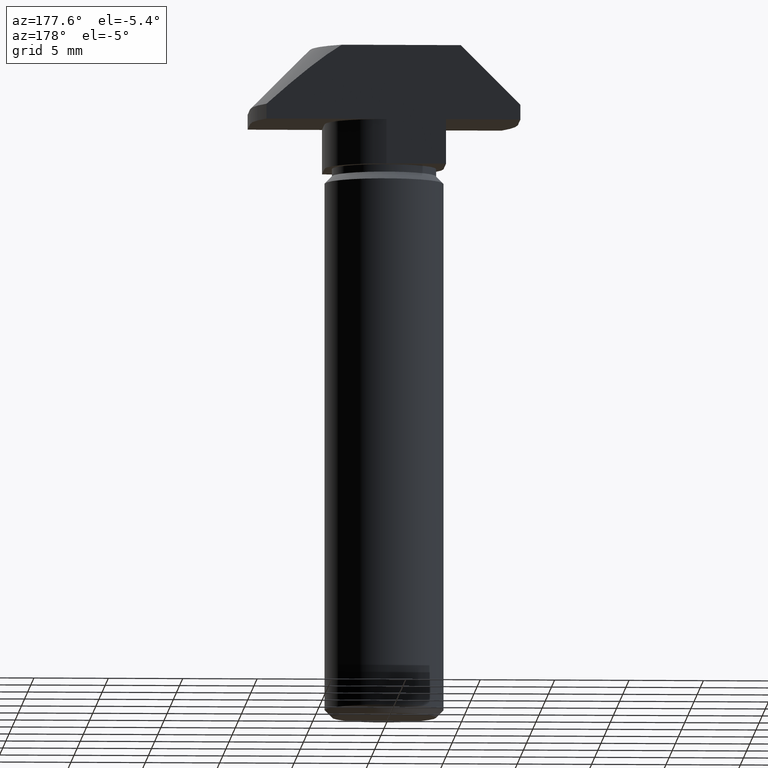
[diagram: clean part render]
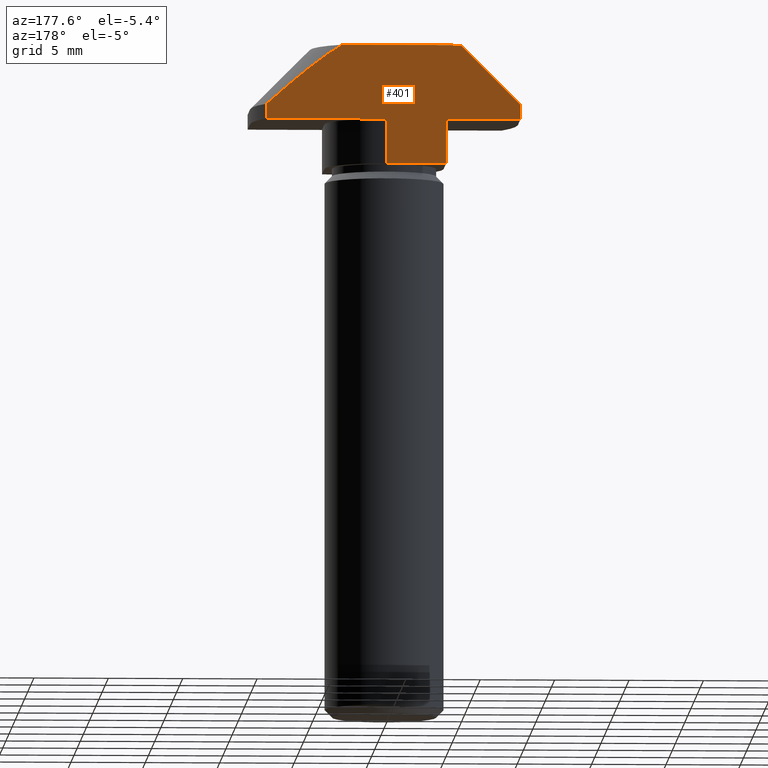
[diagram: same view with one face highlighted and labeled with its STEP entity id]
A machine part, auxiliary view. The second image highlights one B-rep face of the part: STEP entity #401.
In plain terms, the highlighted planar face has unit normal (0, 1, 0).
Its self-contained STEP definition (entity closure, byte-faithful):
#15=(
BOUNDED_CURVE()
B_SPLINE_CURVE(2,(#651,#652,#653),.UNSPECIFIED.,.F.,.F.)
B_SPLINE_CURVE_WITH_KNOTS((3,3),(0.,0.645810133031387),.UNSPECIFIED.)
CURVE()
GEOMETRIC_REPRESENTATION_ITEM()
RATIONAL_B_SPLINE_CURVE((1.,1.07257323111151,1.))
REPRESENTATION_ITEM('')
);
#30=PLANE('',#462);
#59=FACE_OUTER_BOUND('',#83,.T.);
#83=EDGE_LOOP('',(#365,#366,#367,#368,#369,#370,#371,#372,#373,#374));
#89=LINE('',#604,#127);
#97=LINE('',#628,#135);
#98=LINE('',#630,#136);
#102=LINE('',#639,#140);
#103=LINE('',#642,#141);
#107=LINE('',#660,#145);
#117=LINE('',#687,#155);
#119=LINE('',#691,#157);
#121=LINE('',#695,#159);
#127=VECTOR('',#492,10.);
#135=VECTOR('',#514,10.);
#136=VECTOR('',#517,10.);
#140=VECTOR('',#525,10.);
#141=VECTOR('',#528,10.);
#145=VECTOR('',#542,10.);
#155=VECTOR('',#566,10.);
#157=VECTOR('',#570,10.);
#159=VECTOR('',#576,10.);
#180=VERTEX_POINT('',#600);
#182=VERTEX_POINT('',#603);
#190=VERTEX_POINT('',#624);
#191=VERTEX_POINT('',#626);
#194=VERTEX_POINT('',#637);
#195=VERTEX_POINT('',#641);
#198=VERTEX_POINT('',#649);
#199=VERTEX_POINT('',#650);
#208=VERTEX_POINT('',#685);
#209=VERTEX_POINT('',#689);
#220=EDGE_CURVE('',#180,#182,#89,.T.);
#232=EDGE_CURVE('',#190,#191,#97,.T.);
#233=EDGE_CURVE('',#182,#191,#98,.T.);
#238=EDGE_CURVE('',#180,#194,#102,.T.);
#239=EDGE_CURVE('',#195,#190,#103,.T.);
#243=EDGE_CURVE('',#198,#199,#15,.T.);
#247=EDGE_CURVE('',#199,#195,#107,.T.);
#260=EDGE_CURVE('',#194,#208,#117,.T.);
#262=EDGE_CURVE('',#208,#209,#119,.T.);
#264=EDGE_CURVE('',#209,#198,#121,.T.);
#365=ORIENTED_EDGE('',*,*,#247,.T.);
#366=ORIENTED_EDGE('',*,*,#239,.T.);
#367=ORIENTED_EDGE('',*,*,#232,.T.);
#368=ORIENTED_EDGE('',*,*,#233,.F.);
#369=ORIENTED_EDGE('',*,*,#220,.F.);
#370=ORIENTED_EDGE('',*,*,#238,.T.);
#371=ORIENTED_EDGE('',*,*,#260,.T.);
#372=ORIENTED_EDGE('',*,*,#262,.T.);
#373=ORIENTED_EDGE('',*,*,#264,.T.);
#374=ORIENTED_EDGE('',*,*,#243,.T.);
#401=ADVANCED_FACE('',(#59),#30,.T.);
#462=AXIS2_PLACEMENT_3D('',#696,#577,#578);
#492=DIRECTION('',(0.,0.,-1.));
#514=DIRECTION('',(0.,0.,-1.));
#517=DIRECTION('',(1.,0.,0.));
#525=DIRECTION('',(-1.,0.,0.));
#528=DIRECTION('',(-1.,0.,0.));
#542=DIRECTION('',(0.,0.,-1.));
#566=DIRECTION('',(0.,0.,1.));
#570=DIRECTION('',(0.707106781186548,0.,0.707106781186548));
#576=DIRECTION('',(1.,0.,-2.04289535270664E-17));
#577=DIRECTION('center_axis',(0.,1.,0.));
#578=DIRECTION('ref_axis',(0.,0.,1.));
#600=CARTESIAN_POINT('',(-3.99999999999999,3.99999999999998,-5.));
#603=CARTESIAN_POINT('',(-3.99999999999999,3.99999999999998,-8.));
#604=CARTESIAN_POINT('',(-3.99999999999999,3.99999999999998,-5.));
#624=CARTESIAN_POINT('',(0.,3.99999999999998,-5.));
#626=CARTESIAN_POINT('',(0.,3.99999999999998,-8.));
#628=CARTESIAN_POINT('',(0.,3.99999999999998,-5.));
#630=CARTESIAN_POINT('',(0.,3.99999999999998,-8.));
#637=CARTESIAN_POINT('',(-9.,4.,-5.));
#639=CARTESIAN_POINT('',(-9.,4.,-5.));
#641=CARTESIAN_POINT('',(8.06225774829855,4.,-5.));
#642=CARTESIAN_POINT('',(-9.,4.,-5.));
#649=CARTESIAN_POINT('',(3.,4.,0.));
#650=CARTESIAN_POINT('',(8.06225774829855,4.,-4.));
#651=CARTESIAN_POINT('Ctrl Pts',(3.,4.,-2.77555756156289E-16));
#652=CARTESIAN_POINT('Ctrl Pts',(4.80794919582092,4.,-1.08476951749255));
#653=CARTESIAN_POINT('Ctrl Pts',(8.06225774829855,4.,-4.));
#660=CARTESIAN_POINT('',(8.06225774829855,4.,-4.5));
#685=CARTESIAN_POINT('',(-9.,4.,-4.));
#687=CARTESIAN_POINT('',(-9.,4.,-4.));
#689=CARTESIAN_POINT('',(-5.,4.,0.));
#691=CARTESIAN_POINT('',(-5.,4.,4.00551059515339E-16));
#695=CARTESIAN_POINT('',(5.,4.,1.96261524244674E-16));
#696=CARTESIAN_POINT('Origin',(0.,4.,-2.94399659137253));